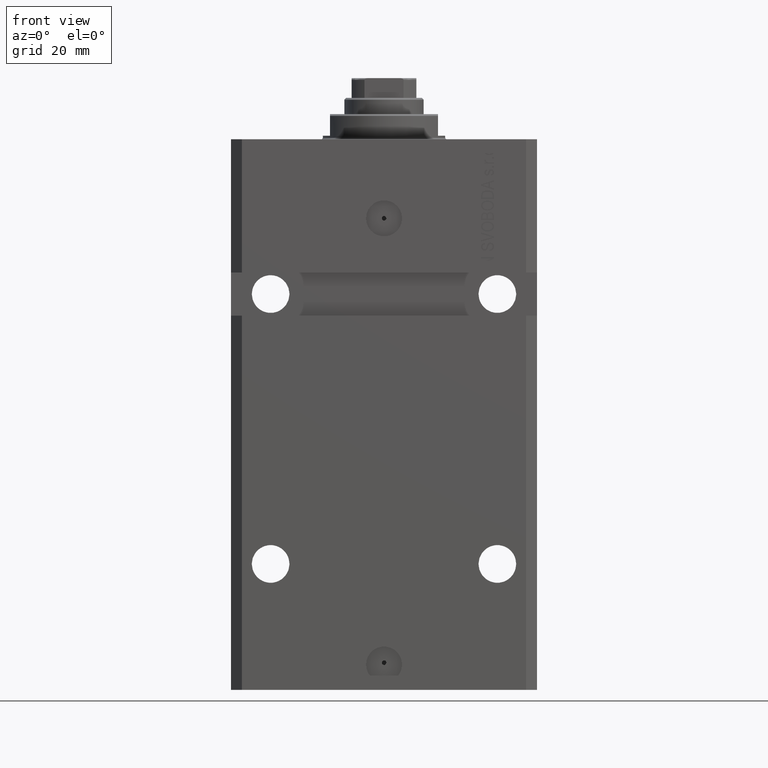
[diagram: clean part render]
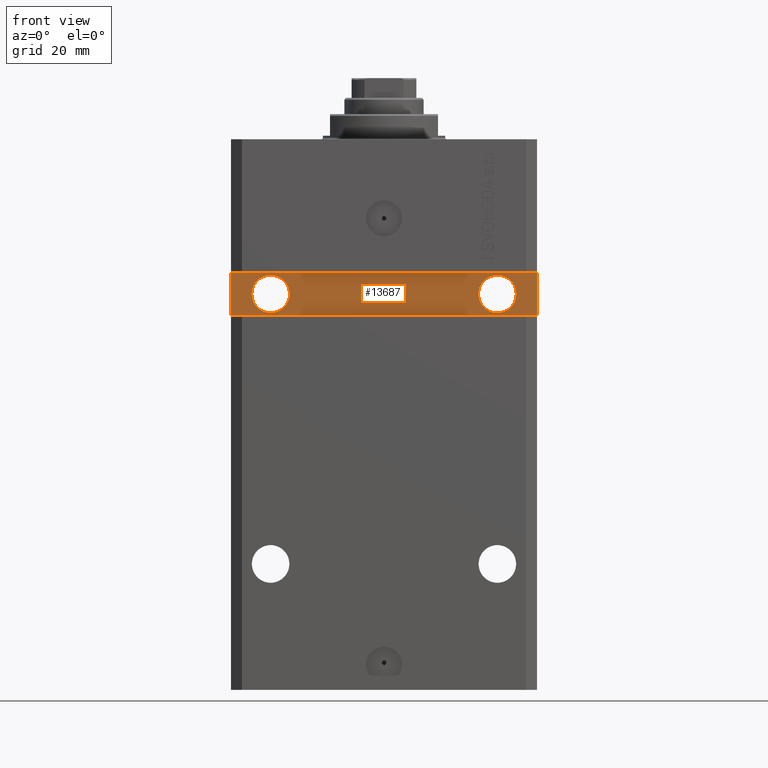
[diagram: same view with one face highlighted and labeled with its STEP entity id]
A machine part, front view. The second image highlights one B-rep face of the part: STEP entity #13687.
In plain terms, the highlighted planar face has unit normal (0, -1, 0).
Its self-contained STEP definition (entity closure, byte-faithful):
#1286 = ORIENTED_EDGE ( 'NONE', *, *, #40430, .F. ) ;
#1449 = FACE_BOUND ( 'NONE', #39987, .T. ) ;
#3233 = CARTESIAN_POINT ( 'NONE',  ( 36.75000000000001421, -28.49999999999999645, -43.00000000000000000 ) ) ;
#4400 = CARTESIAN_POINT ( 'NONE',  ( -42.50000000000001421, -28.50000000000000711, -37.00000000000000711 ) ) ;
#4417 = CARTESIAN_POINT ( 'NONE',  ( -36.74999999999998579, -28.50000000000000355, -43.00000000000000000 ) ) ;
#4630 = ORIENTED_EDGE ( 'NONE', *, *, #37216, .F. ) ;
#4861 = DIRECTION ( 'NONE',  ( 1.000000000000000000, 1.632680918566406054E-16, 0.000000000000000000 ) ) ;
#5579 = DIRECTION ( 'NONE',  ( 1.632680918566406054E-16, -1.000000000000000000, 0.000000000000000000 ) ) ;
#6189 = CARTESIAN_POINT ( 'NONE',  ( 31.50000000000001421, -28.49999999999999645, -43.00000000000000000 ) ) ;
#7394 = DIRECTION ( 'NONE',  ( 1.101411730780568590E-16, -1.000000000000000000, 0.000000000000000000 ) ) ;
#7491 = ORIENTED_EDGE ( 'NONE', *, *, #19402, .F. ) ;
#7513 = CIRCLE ( 'NONE', #43289, 5.249999999999997335 ) ;
#7890 = DIRECTION ( 'NONE',  ( -1.000000000000000000, -1.632680918566406054E-16, -8.163404592832030268E-17 ) ) ;
#7891 = VERTEX_POINT ( 'NONE', #3233 ) ;
#8551 = CARTESIAN_POINT ( 'NONE',  ( -31.49999999999998579, -28.50000000000000355, -43.00000000000000000 ) ) ;
#9927 = VERTEX_POINT ( 'NONE', #25624 ) ;
#11485 = LINE ( 'NONE', #22921, #35654 ) ;
#12187 = ORIENTED_EDGE ( 'NONE', *, *, #29944, .T. ) ;
#12291 = CARTESIAN_POINT ( 'NONE',  ( 31.50000000000001421, -28.49999999999999645, -43.00000000000000000 ) ) ;
#12487 = CIRCLE ( 'NONE', #17172, 5.249999999999997335 ) ;
#13583 = CARTESIAN_POINT ( 'NONE',  ( -26.24999999999998934, -28.50000000000000355, -43.00000000000000000 ) ) ;
#13687 = ADVANCED_FACE ( 'NONE', ( #1449, #34315, #46005 ), #41870, .T. ) ;
#14164 = EDGE_CURVE ( 'NONE', #40817, #29860, #18882, .T. ) ;
#14260 = DIRECTION ( 'NONE',  ( 1.000000000000000000, 1.632680918566406054E-16, 1.632680918566406054E-16 ) ) ;
#16539 = CARTESIAN_POINT ( 'NONE',  ( 4.790119779726142858E-15, -28.50000000000000000, 0.000000000000000000 ) ) ;
#17172 = AXIS2_PLACEMENT_3D ( 'NONE', #12291, #20081, #34913 ) ;
#17389 = AXIS2_PLACEMENT_3D ( 'NONE', #16539, #5579, #4861 ) ;
#17834 = VERTEX_POINT ( 'NONE', #4417 ) ;
#18291 = CARTESIAN_POINT ( 'NONE',  ( 26.25000000000001776, -28.49999999999999645, -43.00000000000000000 ) ) ;
#18527 = LINE ( 'NONE', #4400, #38251 ) ;
#18882 = LINE ( 'NONE', #47850, #43069 ) ;
#19402 = EDGE_CURVE ( 'NONE', #37767, #17834, #41672, .T. ) ;
#19766 = DIRECTION ( 'NONE',  ( 1.101411730780568590E-16, -1.000000000000000000, 0.000000000000000000 ) ) ;
#20081 = DIRECTION ( 'NONE',  ( 1.037025423586453576E-16, -1.000000000000000000, 0.000000000000000000 ) ) ;
#21470 = AXIS2_PLACEMENT_3D ( 'NONE', #37577, #7394, #44891 ) ;
#21708 = AXIS2_PLACEMENT_3D ( 'NONE', #8551, #19766, #22678 ) ;
#22201 = VECTOR ( 'NONE', #7890, 1000.000000000000000 ) ;
#22678 = DIRECTION ( 'NONE',  ( 1.000000000000000000, 0.000000000000000000, 0.000000000000000000 ) ) ;
#22681 = DIRECTION ( 'NONE',  ( 0.000000000000000000, 0.000000000000000000, 1.000000000000000000 ) ) ;
#22921 = CARTESIAN_POINT ( 'NONE',  ( 42.50000000000001421, -28.49999999999999289, -48.99999999999997868 ) ) ;
#23701 = CARTESIAN_POINT ( 'NONE',  ( 42.50000000000001421, -28.49999999999999289, -37.00000000000000000 ) ) ;
#25624 = CARTESIAN_POINT ( 'NONE',  ( 42.50000000000001421, -28.49999999999999289, -37.00000000000000000 ) ) ;
#26819 = ORIENTED_EDGE ( 'NONE', *, *, #31650, .F. ) ;
#28582 = DIRECTION ( 'NONE',  ( 1.037025423586453576E-16, -1.000000000000000000, 0.000000000000000000 ) ) ;
#29496 = CIRCLE ( 'NONE', #21708, 5.249999999999997335 ) ;
#29860 = VERTEX_POINT ( 'NONE', #33198 ) ;
#29944 = EDGE_CURVE ( 'NONE', #9927, #33163, #38062, .T. ) ;
#31643 = ORIENTED_EDGE ( 'NONE', *, *, #36257, .T. ) ;
#31650 = EDGE_CURVE ( 'NONE', #43825, #7891, #7513, .T. ) ;
#33151 = EDGE_LOOP ( 'NONE', ( #40914, #31643, #12187, #36534 ) ) ;
#33163 = VERTEX_POINT ( 'NONE', #47926 ) ;
#33198 = CARTESIAN_POINT ( 'NONE',  ( 42.50000000000001421, -28.49999999999999289, -48.99999999999997868 ) ) ;
#34315 = FACE_BOUND ( 'NONE', #39675, .T. ) ;
#34913 = DIRECTION ( 'NONE',  ( 1.000000000000000000, 0.000000000000000000, 0.000000000000000000 ) ) ;
#35654 = VECTOR ( 'NONE', #22681, 1000.000000000000000 ) ;
#36257 = EDGE_CURVE ( 'NONE', #29860, #9927, #11485, .T. ) ;
#36534 = ORIENTED_EDGE ( 'NONE', *, *, #47051, .T. ) ;
#37216 = EDGE_CURVE ( 'NONE', #17834, #37767, #29496, .T. ) ;
#37577 = CARTESIAN_POINT ( 'NONE',  ( -31.49999999999998579, -28.50000000000000355, -43.00000000000000000 ) ) ;
#37767 = VERTEX_POINT ( 'NONE', #13583 ) ;
#38062 = LINE ( 'NONE', #23701, #22201 ) ;
#38251 = VECTOR ( 'NONE', #47986, 1000.000000000000000 ) ;
#39463 = CARTESIAN_POINT ( 'NONE',  ( -42.50000000000001421, -28.50000000000000711, -48.99999999999999289 ) ) ;
#39675 = EDGE_LOOP ( 'NONE', ( #7491, #4630 ) ) ;
#39987 = EDGE_LOOP ( 'NONE', ( #1286, #26819 ) ) ;
#40430 = EDGE_CURVE ( 'NONE', #7891, #43825, #12487, .T. ) ;
#40817 = VERTEX_POINT ( 'NONE', #39463 ) ;
#40914 = ORIENTED_EDGE ( 'NONE', *, *, #14164, .T. ) ;
#41672 = CIRCLE ( 'NONE', #21470, 5.249999999999997335 ) ;
#41870 = PLANE ( 'NONE',  #17389 ) ;
#43069 = VECTOR ( 'NONE', #14260, 1000.000000000000000 ) ;
#43289 = AXIS2_PLACEMENT_3D ( 'NONE', #6189, #28582, #43677 ) ;
#43677 = DIRECTION ( 'NONE',  ( 1.000000000000000000, 0.000000000000000000, 0.000000000000000000 ) ) ;
#43825 = VERTEX_POINT ( 'NONE', #18291 ) ;
#44891 = DIRECTION ( 'NONE',  ( 1.000000000000000000, 0.000000000000000000, 0.000000000000000000 ) ) ;
#46005 = FACE_OUTER_BOUND ( 'NONE', #33151, .T. ) ;
#47051 = EDGE_CURVE ( 'NONE', #33163, #40817, #18527, .T. ) ;
#47850 = CARTESIAN_POINT ( 'NONE',  ( -42.50000000000001421, -28.50000000000000711, -48.99999999999999289 ) ) ;
#47926 = CARTESIAN_POINT ( 'NONE',  ( -42.50000000000001421, -28.50000000000000711, -37.00000000000000711 ) ) ;
#47986 = DIRECTION ( 'NONE',  ( 0.000000000000000000, 0.000000000000000000, -1.000000000000000000 ) ) ;